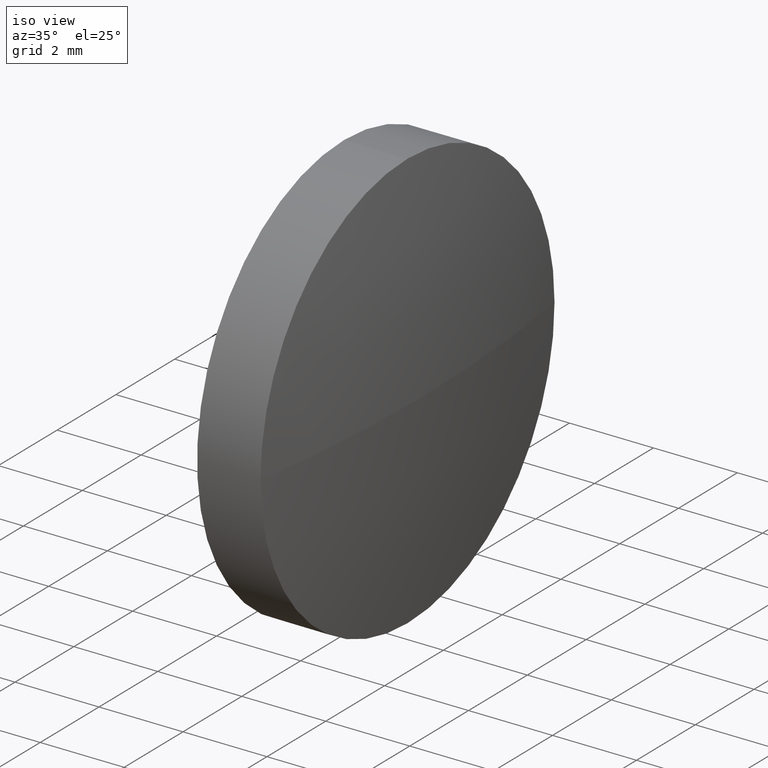
[diagram: clean part render]
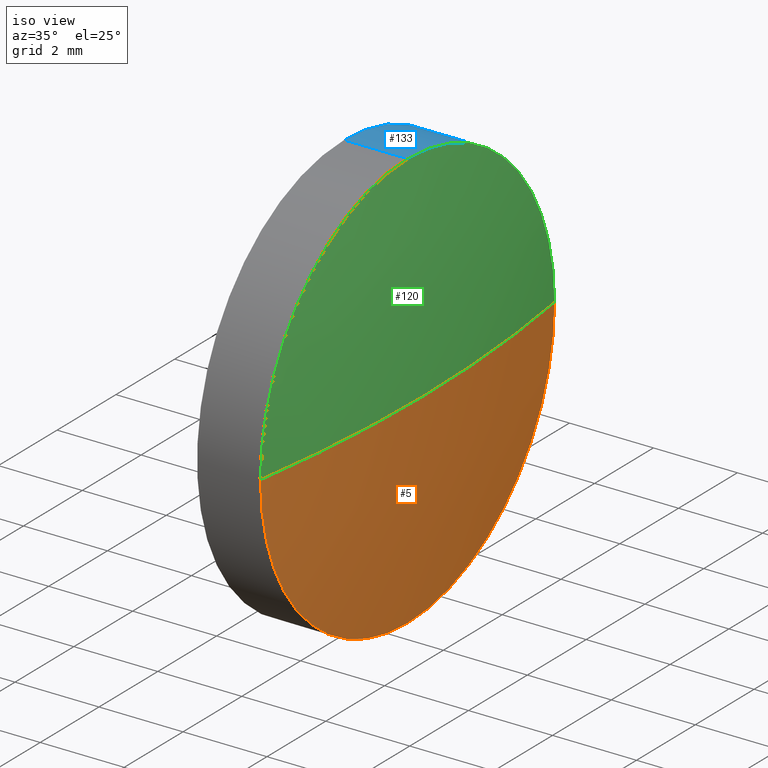
[diagram: same view with three faces highlighted in distinct colors, each labeled with its STEP entity id]
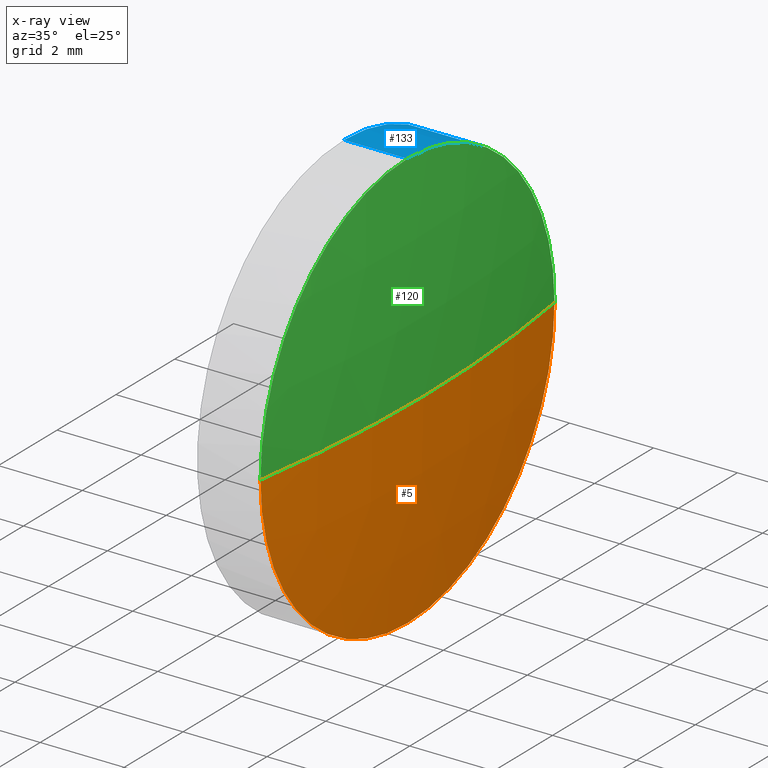
[diagram: x-ray of the same camera — body ghosted, the three highlighted faces saturated]
A machine part, iso view with three faces highlighted in distinct colors.
The next image is the same camera in x-ray (body ghosted, the three faces saturated) — at least one of them is partly hidden behind the body in this view.
Their STEP definitions:

[orange] entity #5 — the highlighted spherical surface has radius 32.2463 mm.
#1 = CIRCLE ( 'NONE', #57, 5.000000000000004400 ) ;
#5 = ADVANCED_FACE ( 'NONE', ( #59 ), #35, .T. ) ;
#8 = CARTESIAN_POINT ( 'NONE',  ( 565.1214862982791400, 196.2413410998473800, 0.0000000000000000000 ) ) ;
#9 = DIRECTION ( 'NONE',  ( 0.0000000000000000000, -1.000000000000000000, -1.224646799147353200E-016 ) ) ;
#12 = ORIENTED_EDGE ( 'NONE', *, *, #146, .F. ) ;
#19 = CARTESIAN_POINT ( 'NONE',  ( 596.9777683495610700, 196.2413410998470100, -5.000000000000004400 ) ) ;
#35 = SPHERICAL_SURFACE ( 'NONE', #48, 32.24628205128185200 ) ;
#39 = ORIENTED_EDGE ( 'NONE', *, *, #53, .F. ) ;
#47 = DIRECTION ( 'NONE',  ( 0.0000000000000000000, -1.224646799147353200E-016, 1.000000000000000000 ) ) ;
#48 = AXIS2_PLACEMENT_3D ( 'NONE', #8, #152, #167 ) ;
#53 = EDGE_CURVE ( 'NONE', #99, #91, #1, .T. ) ;
#56 = CIRCLE ( 'NONE', #109, 32.24628205128185200 ) ;
#57 = AXIS2_PLACEMENT_3D ( 'NONE', #123, #64, #86 ) ;
#59 = FACE_OUTER_BOUND ( 'NONE', #175, .T. ) ;
#64 = DIRECTION ( 'NONE',  ( -1.000000000000000000, -0.0000000000000000000, -0.0000000000000000000 ) ) ;
#73 = EDGE_CURVE ( 'NONE', #82, #117, #145, .T. ) ;
#74 = CIRCLE ( 'NONE', #153, 5.000000000000004400 ) ;
#75 = AXIS2_PLACEMENT_3D ( 'NONE', #142, #169, #124 ) ;
#82 = VERTEX_POINT ( 'NONE', #83 ) ;
#83 = CARTESIAN_POINT ( 'NONE',  ( 597.3677683495610600, 196.2413410998473800, 0.0000000000000000000 ) ) ;
#84 = CARTESIAN_POINT ( 'NONE',  ( 565.1214862982791400, 196.2413410998473800, 0.0000000000000000000 ) ) ;
#85 = EDGE_CURVE ( 'NONE', #82, #99, #56, .T. ) ;
#86 = DIRECTION ( 'NONE',  ( 0.0000000000000000000, 0.0000000000000000000, 1.000000000000000000 ) ) ;
#91 = VERTEX_POINT ( 'NONE', #19 ) ;
#97 = DIRECTION ( 'NONE',  ( 0.0000000000000000000, 0.0000000000000000000, 1.000000000000000000 ) ) ;
#99 = VERTEX_POINT ( 'NONE', #125 ) ;
#109 = AXIS2_PLACEMENT_3D ( 'NONE', #84, #47, #9 ) ;
#113 = CARTESIAN_POINT ( 'NONE',  ( 596.9777683495610700, 196.2413410998470100, 0.0000000000000000000 ) ) ;
#117 = VERTEX_POINT ( 'NONE', #171 ) ;
#123 = CARTESIAN_POINT ( 'NONE',  ( 596.9777683495610700, 196.2413410998470100, 0.0000000000000000000 ) ) ;
#124 = DIRECTION ( 'NONE',  ( -1.000000000000000000, 0.0000000000000000000, 0.0000000000000000000 ) ) ;
#125 = CARTESIAN_POINT ( 'NONE',  ( 596.9777683495610700, 201.2413410998470900, 6.123233995736422100E-016 ) ) ;
#127 = ORIENTED_EDGE ( 'NONE', *, *, #85, .F. ) ;
#131 = ORIENTED_EDGE ( 'NONE', *, *, #73, .T. ) ;
#142 = CARTESIAN_POINT ( 'NONE',  ( 565.1214862982791400, 196.2413410998473800, 0.0000000000000000000 ) ) ;
#145 = CIRCLE ( 'NONE', #75, 32.24628205128188100 ) ;
#146 = EDGE_CURVE ( 'NONE', #91, #117, #74, .T. ) ;
#152 = DIRECTION ( 'NONE',  ( 0.0000000000000000000, 0.0000000000000000000, 1.000000000000000000 ) ) ;
#153 = AXIS2_PLACEMENT_3D ( 'NONE', #113, #184, #97 ) ;
#167 = DIRECTION ( 'NONE',  ( 0.0000000000000000000, -1.000000000000000000, 0.0000000000000000000 ) ) ;
#169 = DIRECTION ( 'NONE',  ( 0.0000000000000000000, 0.0000000000000000000, -1.000000000000000000 ) ) ;
#171 = CARTESIAN_POINT ( 'NONE',  ( 596.9777683495610700, 191.2413410998472900, 0.0000000000000000000 ) ) ;
#175 = EDGE_LOOP ( 'NONE', ( #127, #131, #12, #39 ) ) ;
#184 = DIRECTION ( 'NONE',  ( -1.000000000000000000, -0.0000000000000000000, -0.0000000000000000000 ) ) ;

[blue] entity #133 — the highlighted cylindrical surface (partial cylindrical patch) has radius 5 mm, axis along (-1, -0, -0).
#1 = CIRCLE ( 'NONE', #57, 5.000000000000004400 ) ;
#3 = VERTEX_POINT ( 'NONE', #33 ) ;
#4 = LINE ( 'NONE', #141, #72 ) ;
#7 = EDGE_LOOP ( 'NONE', ( #173, #161, #135, #27, #102 ) ) ;
#11 = DIRECTION ( 'NONE',  ( -1.000000000000000000, -0.0000000000000000000, -0.0000000000000000000 ) ) ;
#15 = CIRCLE ( 'NONE', #165, 5.000000000000004400 ) ;
#19 = CARTESIAN_POINT ( 'NONE',  ( 596.9777683495610700, 196.2413410998470100, -5.000000000000004400 ) ) ;
#20 = CARTESIAN_POINT ( 'NONE',  ( 595.4677683495610800, 196.2413410998470100, 0.0000000000000000000 ) ) ;
#21 = DIRECTION ( 'NONE',  ( -1.000000000000000000, -0.0000000000000000000, -0.0000000000000000000 ) ) ;
#23 = DIRECTION ( 'NONE',  ( 0.0000000000000000000, 0.0000000000000000000, 1.000000000000000000 ) ) ;
#24 = DIRECTION ( 'NONE',  ( 0.0000000000000000000, 0.0000000000000000000, 1.000000000000000000 ) ) ;
#27 = ORIENTED_EDGE ( 'NONE', *, *, #63, .F. ) ;
#33 = CARTESIAN_POINT ( 'NONE',  ( 596.9777683495610700, 196.2413410998470100, 5.000000000000004400 ) ) ;
#36 = DIRECTION ( 'NONE',  ( -1.000000000000000000, -0.0000000000000000000, -0.0000000000000000000 ) ) ;
#52 = EDGE_CURVE ( 'NONE', #159, #55, #15, .T. ) ;
#53 = EDGE_CURVE ( 'NONE', #99, #91, #1, .T. ) ;
#55 = VERTEX_POINT ( 'NONE', #108 ) ;
#57 = AXIS2_PLACEMENT_3D ( 'NONE', #123, #64, #86 ) ;
#63 = EDGE_CURVE ( 'NONE', #3, #159, #4, .T. ) ;
#64 = DIRECTION ( 'NONE',  ( -1.000000000000000000, -0.0000000000000000000, -0.0000000000000000000 ) ) ;
#65 = FACE_OUTER_BOUND ( 'NONE', #7, .T. ) ;
#67 = EDGE_CURVE ( 'NONE', #91, #55, #112, .T. ) ;
#69 = CARTESIAN_POINT ( 'NONE',  ( 595.4677683495610800, 196.2413410998470100, 5.000000000000004400 ) ) ;
#71 = CYLINDRICAL_SURFACE ( 'NONE', #77, 5.000000000000004400 ) ;
#72 = VECTOR ( 'NONE', #21, 1000.000000000000000 ) ;
#76 = CIRCLE ( 'NONE', #151, 5.000000000000004400 ) ;
#77 = AXIS2_PLACEMENT_3D ( 'NONE', #172, #11, #24 ) ;
#86 = DIRECTION ( 'NONE',  ( 0.0000000000000000000, 0.0000000000000000000, 1.000000000000000000 ) ) ;
#88 = CARTESIAN_POINT ( 'NONE',  ( 596.9777683495610700, 196.2413410998470100, 0.0000000000000000000 ) ) ;
#91 = VERTEX_POINT ( 'NONE', #19 ) ;
#96 = CARTESIAN_POINT ( 'NONE',  ( 594.5262178777866200, 196.2413410998470100, -5.000000000000004400 ) ) ;
#99 = VERTEX_POINT ( 'NONE', #125 ) ;
#100 = VECTOR ( 'NONE', #36, 1000.000000000000000 ) ;
#102 = ORIENTED_EDGE ( 'NONE', *, *, #129, .T. ) ;
#107 = DIRECTION ( 'NONE',  ( 0.0000000000000000000, 0.0000000000000000000, 1.000000000000000000 ) ) ;
#108 = CARTESIAN_POINT ( 'NONE',  ( 595.4677683495610800, 196.2413410998470100, -5.000000000000004400 ) ) ;
#110 = DIRECTION ( 'NONE',  ( -1.000000000000000000, -0.0000000000000000000, -0.0000000000000000000 ) ) ;
#112 = LINE ( 'NONE', #96, #100 ) ;
#123 = CARTESIAN_POINT ( 'NONE',  ( 596.9777683495610700, 196.2413410998470100, 0.0000000000000000000 ) ) ;
#125 = CARTESIAN_POINT ( 'NONE',  ( 596.9777683495610700, 201.2413410998470900, 6.123233995736422100E-016 ) ) ;
#126 = DIRECTION ( 'NONE',  ( -1.000000000000000000, -0.0000000000000000000, -0.0000000000000000000 ) ) ;
#129 = EDGE_CURVE ( 'NONE', #3, #99, #76, .T. ) ;
#133 = ADVANCED_FACE ( 'NONE', ( #65 ), #71, .T. ) ;
#135 = ORIENTED_EDGE ( 'NONE', *, *, #52, .F. ) ;
#141 = CARTESIAN_POINT ( 'NONE',  ( 594.5262178777866200, 196.2413410998470100, 5.000000000000004400 ) ) ;
#151 = AXIS2_PLACEMENT_3D ( 'NONE', #88, #126, #23 ) ;
#159 = VERTEX_POINT ( 'NONE', #69 ) ;
#161 = ORIENTED_EDGE ( 'NONE', *, *, #67, .T. ) ;
#165 = AXIS2_PLACEMENT_3D ( 'NONE', #20, #110, #107 ) ;
#172 = CARTESIAN_POINT ( 'NONE',  ( 594.5262178777866200, 196.2413410998470100, 0.0000000000000000000 ) ) ;
#173 = ORIENTED_EDGE ( 'NONE', *, *, #53, .T. ) ;

[green] entity #120 — the highlighted spherical surface has radius 32.2463 mm.
#2 = EDGE_CURVE ( 'NONE', #117, #3, #177, .T. ) ;
#3 = VERTEX_POINT ( 'NONE', #33 ) ;
#9 = DIRECTION ( 'NONE',  ( 0.0000000000000000000, -1.000000000000000000, -1.224646799147353200E-016 ) ) ;
#17 = ORIENTED_EDGE ( 'NONE', *, *, #85, .T. ) ;
#22 = SPHERICAL_SURFACE ( 'NONE', #178, 32.24628205128185200 ) ;
#23 = DIRECTION ( 'NONE',  ( 0.0000000000000000000, 0.0000000000000000000, 1.000000000000000000 ) ) ;
#33 = CARTESIAN_POINT ( 'NONE',  ( 596.9777683495610700, 196.2413410998470100, 5.000000000000004400 ) ) ;
#34 = CARTESIAN_POINT ( 'NONE',  ( 565.1214862982791400, 196.2413410998473800, 0.0000000000000000000 ) ) ;
#44 = ORIENTED_EDGE ( 'NONE', *, *, #2, .F. ) ;
#45 = DIRECTION ( 'NONE',  ( 0.0000000000000000000, 0.0000000000000000000, 1.000000000000000000 ) ) ;
#47 = DIRECTION ( 'NONE',  ( 0.0000000000000000000, -1.224646799147353200E-016, 1.000000000000000000 ) ) ;
#56 = CIRCLE ( 'NONE', #109, 32.24628205128185200 ) ;
#61 = ORIENTED_EDGE ( 'NONE', *, *, #73, .F. ) ;
#73 = EDGE_CURVE ( 'NONE', #82, #117, #145, .T. ) ;
#75 = AXIS2_PLACEMENT_3D ( 'NONE', #142, #169, #124 ) ;
#76 = CIRCLE ( 'NONE', #151, 5.000000000000004400 ) ;
#82 = VERTEX_POINT ( 'NONE', #83 ) ;
#83 = CARTESIAN_POINT ( 'NONE',  ( 597.3677683495610600, 196.2413410998473800, 0.0000000000000000000 ) ) ;
#84 = CARTESIAN_POINT ( 'NONE',  ( 565.1214862982791400, 196.2413410998473800, 0.0000000000000000000 ) ) ;
#85 = EDGE_CURVE ( 'NONE', #82, #99, #56, .T. ) ;
#88 = CARTESIAN_POINT ( 'NONE',  ( 596.9777683495610700, 196.2413410998470100, 0.0000000000000000000 ) ) ;
#99 = VERTEX_POINT ( 'NONE', #125 ) ;
#109 = AXIS2_PLACEMENT_3D ( 'NONE', #84, #47, #9 ) ;
#117 = VERTEX_POINT ( 'NONE', #171 ) ;
#120 = ADVANCED_FACE ( 'NONE', ( #154 ), #22, .T. ) ;
#122 = DIRECTION ( 'NONE',  ( 0.0000000000000000000, 0.0000000000000000000, 1.000000000000000000 ) ) ;
#124 = DIRECTION ( 'NONE',  ( -1.000000000000000000, 0.0000000000000000000, 0.0000000000000000000 ) ) ;
#125 = CARTESIAN_POINT ( 'NONE',  ( 596.9777683495610700, 201.2413410998470900, 6.123233995736422100E-016 ) ) ;
#126 = DIRECTION ( 'NONE',  ( -1.000000000000000000, -0.0000000000000000000, -0.0000000000000000000 ) ) ;
#129 = EDGE_CURVE ( 'NONE', #3, #99, #76, .T. ) ;
#142 = CARTESIAN_POINT ( 'NONE',  ( 565.1214862982791400, 196.2413410998473800, 0.0000000000000000000 ) ) ;
#145 = CIRCLE ( 'NONE', #75, 32.24628205128188100 ) ;
#147 = EDGE_LOOP ( 'NONE', ( #61, #17, #185, #44 ) ) ;
#149 = AXIS2_PLACEMENT_3D ( 'NONE', #156, #155, #122 ) ;
#151 = AXIS2_PLACEMENT_3D ( 'NONE', #88, #126, #23 ) ;
#154 = FACE_OUTER_BOUND ( 'NONE', #147, .T. ) ;
#155 = DIRECTION ( 'NONE',  ( -1.000000000000000000, -0.0000000000000000000, -0.0000000000000000000 ) ) ;
#156 = CARTESIAN_POINT ( 'NONE',  ( 596.9777683495610700, 196.2413410998470100, 0.0000000000000000000 ) ) ;
#169 = DIRECTION ( 'NONE',  ( 0.0000000000000000000, 0.0000000000000000000, -1.000000000000000000 ) ) ;
#171 = CARTESIAN_POINT ( 'NONE',  ( 596.9777683495610700, 191.2413410998472900, 0.0000000000000000000 ) ) ;
#177 = CIRCLE ( 'NONE', #149, 5.000000000000004400 ) ;
#178 = AXIS2_PLACEMENT_3D ( 'NONE', #34, #45, #181 ) ;
#181 = DIRECTION ( 'NONE',  ( 0.0000000000000000000, -1.000000000000000000, 0.0000000000000000000 ) ) ;
#185 = ORIENTED_EDGE ( 'NONE', *, *, #129, .F. ) ;